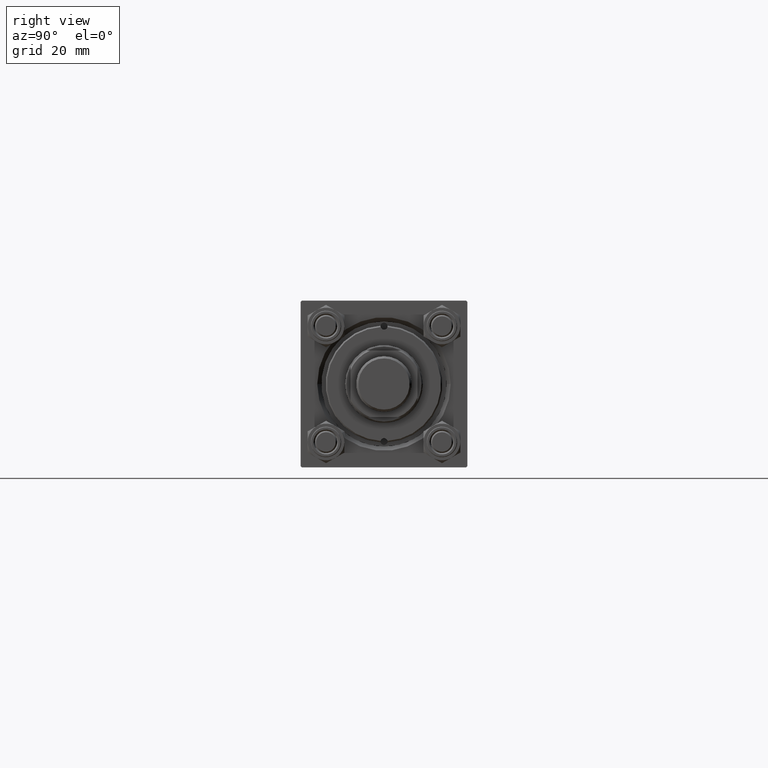
[diagram: clean part render]
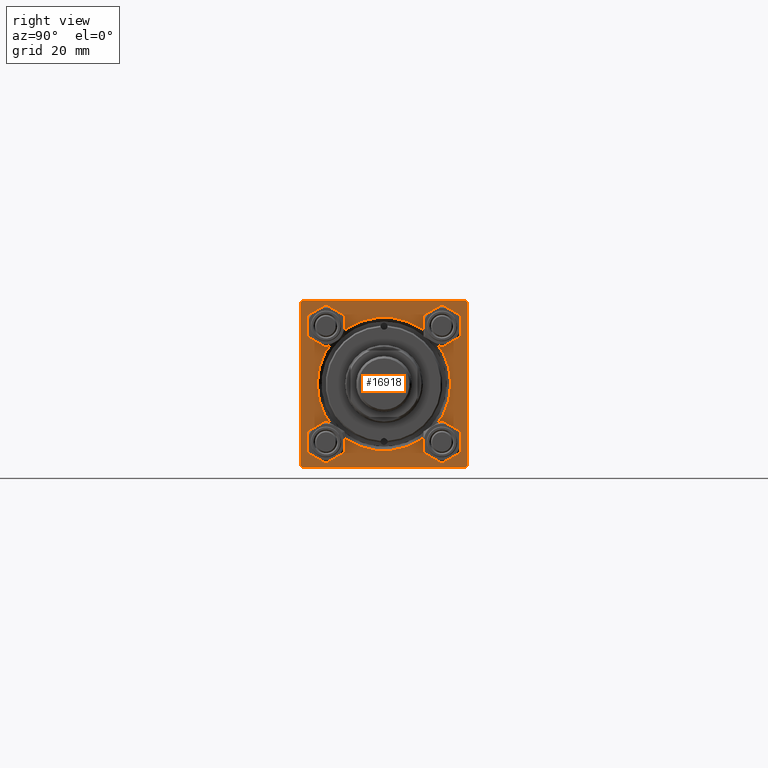
[diagram: same view with one face highlighted and labeled with its STEP entity id]
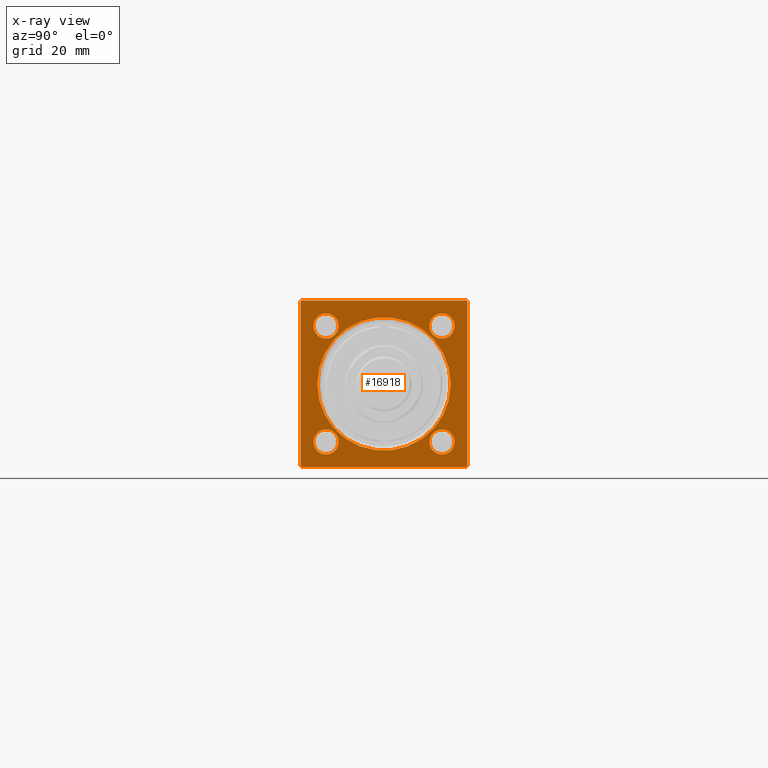
[diagram: x-ray of the same camera — body ghosted, the highlighted face saturated]
A machine part, right view. The second image highlights one B-rep face of the part: STEP entity #16918.
The next image is the same camera in x-ray: the body ghosted, the highlighted face saturated — about 0% of this face is hidden behind the body in this view.
In plain terms, the highlighted planar face has unit normal (-1, 0, 0).
Its self-contained STEP definition (entity closure, byte-faithful):
#65 = FACE_BOUND ( 'NONE', #26606, .T. ) ;
#494 = DIRECTION ( 'NONE',  ( 0.000000000000000000, 0.000000000000000000, 1.000000000000000000 ) ) ;
#593 = DIRECTION ( 'NONE',  ( 0.000000000000000000, 0.000000000000000000, 1.000000000000000000 ) ) ;
#742 = VERTEX_POINT ( 'NONE', #10317 ) ;
#767 = AXIS2_PLACEMENT_3D ( 'NONE', #34773, #26139, #25629 ) ;
#818 = FACE_BOUND ( 'NONE', #18807, .T. ) ;
#980 = AXIS2_PLACEMENT_3D ( 'NONE', #35482, #47048, #40095 ) ;
#1140 = AXIS2_PLACEMENT_3D ( 'NONE', #13051, #19986, #494 ) ;
#1704 = DIRECTION ( 'NONE',  ( -1.000000000000000000, 0.000000000000000000, -0.000000000000000000 ) ) ;
#2290 = LINE ( 'NONE', #45687, #48070 ) ;
#3134 = ORIENTED_EDGE ( 'NONE', *, *, #30481, .T. ) ;
#3347 = EDGE_CURVE ( 'NONE', #4577, #30476, #32296, .T. ) ;
#4004 = DIRECTION ( 'NONE',  ( 0.000000000000000000, -1.000000000000000000, -1.156482317317871478E-16 ) ) ;
#4492 = DIRECTION ( 'NONE',  ( 0.000000000000000000, 0.000000000000000000, 1.000000000000000000 ) ) ;
#4577 = VERTEX_POINT ( 'NONE', #38826 ) ;
#4950 = EDGE_LOOP ( 'NONE', ( #40912, #36029 ) ) ;
#5417 = LINE ( 'NONE', #5679, #8709 ) ;
#5527 = CARTESIAN_POINT ( 'NONE',  ( 148.0000000000000000, 30.00000000000000000, -29.49999999999999289 ) ) ;
#5679 = CARTESIAN_POINT ( 'NONE',  ( 148.0000000000000000, -29.50000000000000000, -30.00000000000000000 ) ) ;
#6727 = ORIENTED_EDGE ( 'NONE', *, *, #29490, .T. ) ;
#6857 = VERTEX_POINT ( 'NONE', #39284 ) ;
#7129 = VECTOR ( 'NONE', #44576, 1000.000000000000114 ) ;
#7213 = CARTESIAN_POINT ( 'NONE',  ( 148.0000000000000000, -30.00000000000000000, 29.49999999999999289 ) ) ;
#7298 = VERTEX_POINT ( 'NONE', #43359 ) ;
#7476 = ORIENTED_EDGE ( 'NONE', *, *, #10613, .T. ) ;
#7773 = CARTESIAN_POINT ( 'NONE',  ( 148.0000000000000000, 20.84999999999999787, 20.85000000000000142 ) ) ;
#7782 = EDGE_CURVE ( 'NONE', #12821, #742, #29420, .T. ) ;
#8271 = DIRECTION ( 'NONE',  ( -1.000000000000000000, 0.000000000000000000, -0.000000000000000000 ) ) ;
#8523 = CARTESIAN_POINT ( 'NONE',  ( 148.0000000000000000, 20.84999999999999787, -20.85000000000000142 ) ) ;
#8676 = CIRCLE ( 'NONE', #9502, 4.500000000000017764 ) ;
#8709 = VECTOR ( 'NONE', #27838, 1000.000000000000114 ) ;
#9215 = DIRECTION ( 'NONE',  ( 0.000000000000000000, 0.000000000000000000, 1.000000000000000000 ) ) ;
#9502 = AXIS2_PLACEMENT_3D ( 'NONE', #26929, #38242, #14623 ) ;
#9604 = EDGE_CURVE ( 'NONE', #14969, #45554, #49526, .T. ) ;
#9749 = CARTESIAN_POINT ( 'NONE',  ( 148.0000000000000000, -20.85000000000000142, -25.35000000000001918 ) ) ;
#9821 = ORIENTED_EDGE ( 'NONE', *, *, #46808, .T. ) ;
#9916 = CARTESIAN_POINT ( 'NONE',  ( 148.0000000000000000, 0.000000000000000000, 0.000000000000000000 ) ) ;
#10317 = CARTESIAN_POINT ( 'NONE',  ( 148.0000000000000000, 30.00000000000000000, -29.49999999999997868 ) ) ;
#10483 = DIRECTION ( 'NONE',  ( -0.000000000000000000, -0.7071067811865474617, -0.7071067811865474617 ) ) ;
#10565 = CARTESIAN_POINT ( 'NONE',  ( 148.0000000000000000, -20.84999999999999432, 16.34999999999998366 ) ) ;
#10613 = EDGE_CURVE ( 'NONE', #45978, #7298, #22079, .T. ) ;
#10617 = EDGE_CURVE ( 'NONE', #31427, #28323, #42573, .T. ) ;
#10661 = CARTESIAN_POINT ( 'NONE',  ( 148.0000000000000000, 0.000000000000000000, -24.00000000000003908 ) ) ;
#10794 = ORIENTED_EDGE ( 'NONE', *, *, #9604, .T. ) ;
#10937 = EDGE_LOOP ( 'NONE', ( #26867, #46788 ) ) ;
#11009 = AXIS2_PLACEMENT_3D ( 'NONE', #9916, #1704, #37643 ) ;
#12133 = EDGE_CURVE ( 'NONE', #42446, #42846, #29527, .T. ) ;
#12764 = VECTOR ( 'NONE', #45111, 1000.000000000000114 ) ;
#12821 = VERTEX_POINT ( 'NONE', #13854 ) ;
#13051 = CARTESIAN_POINT ( 'NONE',  ( 148.0000000000000000, -20.85000000000000142, -20.85000000000000142 ) ) ;
#13117 = VECTOR ( 'NONE', #10483, 1000.000000000000114 ) ;
#13755 = LINE ( 'NONE', #37390, #12764 ) ;
#13854 = CARTESIAN_POINT ( 'NONE',  ( 148.0000000000000000, 29.50000000000000000, -29.99999999999999289 ) ) ;
#14300 = EDGE_CURVE ( 'NONE', #6857, #14969, #44062, .T. ) ;
#14319 = CARTESIAN_POINT ( 'NONE',  ( 148.0000000000000000, 20.84999999999999787, -25.35000000000001918 ) ) ;
#14623 = DIRECTION ( 'NONE',  ( 0.000000000000000000, 0.000000000000000000, 1.000000000000000000 ) ) ;
#14969 = VERTEX_POINT ( 'NONE', #25887 ) ;
#15854 = EDGE_LOOP ( 'NONE', ( #49025, #9821, #42131, #43361, #16488, #6727, #49681, #10794 ) ) ;
#15964 = FACE_BOUND ( 'NONE', #24201, .T. ) ;
#16488 = ORIENTED_EDGE ( 'NONE', *, *, #23167, .F. ) ;
#16544 = CARTESIAN_POINT ( 'NONE',  ( 148.0000000000000000, -20.85000000000000142, -20.85000000000000142 ) ) ;
#16586 = CARTESIAN_POINT ( 'NONE',  ( 148.0000000000000000, -30.00000000000000000, 29.99999999999999289 ) ) ;
#16918 = ADVANCED_FACE ( 'NONE', ( #47558, #818, #15964, #28028, #65, #31897 ), #32401, .F. ) ;
#18807 = EDGE_LOOP ( 'NONE', ( #3134, #28249 ) ) ;
#19986 = DIRECTION ( 'NONE',  ( -1.000000000000000000, 0.000000000000000000, -0.000000000000000000 ) ) ;
#21264 = AXIS2_PLACEMENT_3D ( 'NONE', #8523, #8271, #35509 ) ;
#21551 = DIRECTION ( 'NONE',  ( -1.000000000000000000, 0.000000000000000000, -0.000000000000000000 ) ) ;
#22079 = CIRCLE ( 'NONE', #40090, 4.500000000000017764 ) ;
#22244 = EDGE_CURVE ( 'NONE', #45554, #30277, #32257, .T. ) ;
#22748 = AXIS2_PLACEMENT_3D ( 'NONE', #22821, #46948, #26430 ) ;
#22821 = CARTESIAN_POINT ( 'NONE',  ( 148.0000000000000000, -20.84999999999999432, 20.85000000000000142 ) ) ;
#23167 = EDGE_CURVE ( 'NONE', #37876, #742, #37721, .T. ) ;
#23607 = CARTESIAN_POINT ( 'NONE',  ( 148.0000000000000000, -29.50000000000000000, -30.00000000000000000 ) ) ;
#23710 = VERTEX_POINT ( 'NONE', #10565 ) ;
#24201 = EDGE_LOOP ( 'NONE', ( #46082, #7476 ) ) ;
#24925 = CIRCLE ( 'NONE', #11009, 24.00000000000003908 ) ;
#25410 = CARTESIAN_POINT ( 'NONE',  ( 148.0000000000000000, 20.84999999999999787, -20.85000000000000142 ) ) ;
#25629 = DIRECTION ( 'NONE',  ( 0.000000000000000000, 0.000000000000000000, 1.000000000000000000 ) ) ;
#25648 = CARTESIAN_POINT ( 'NONE',  ( 148.0000000000000000, 30.00000000000000000, 30.00000000000000000 ) ) ;
#25887 = CARTESIAN_POINT ( 'NONE',  ( 148.0000000000000000, -29.50000000000000000, 29.99999999999999289 ) ) ;
#26139 = DIRECTION ( 'NONE',  ( -1.000000000000000000, 0.000000000000000000, -0.000000000000000000 ) ) ;
#26430 = DIRECTION ( 'NONE',  ( 0.000000000000000000, 0.000000000000000000, 1.000000000000000000 ) ) ;
#26606 = EDGE_LOOP ( 'NONE', ( #35897, #43720 ) ) ;
#26867 = ORIENTED_EDGE ( 'NONE', *, *, #32600, .T. ) ;
#26929 = CARTESIAN_POINT ( 'NONE',  ( 148.0000000000000000, -20.84999999999999432, 20.85000000000000142 ) ) ;
#27118 = VECTOR ( 'NONE', #4004, 1000.000000000000000 ) ;
#27581 = CIRCLE ( 'NONE', #42344, 4.500000000000017764 ) ;
#27838 = DIRECTION ( 'NONE',  ( 0.000000000000000000, 0.7071067811865474617, -0.7071067811865474617 ) ) ;
#27944 = CARTESIAN_POINT ( 'NONE',  ( 148.0000000000000000, 2.939152317953652628E-15, 24.00000000000003908 ) ) ;
#28028 = FACE_BOUND ( 'NONE', #4950, .T. ) ;
#28249 = ORIENTED_EDGE ( 'NONE', *, *, #10617, .T. ) ;
#28323 = VERTEX_POINT ( 'NONE', #14319 ) ;
#28399 = CARTESIAN_POINT ( 'NONE',  ( 148.0000000000000000, 20.84999999999999787, 20.85000000000000142 ) ) ;
#29420 = LINE ( 'NONE', #5527, #7129 ) ;
#29490 = EDGE_CURVE ( 'NONE', #37876, #6857, #13755, .T. ) ;
#29527 = CIRCLE ( 'NONE', #767, 24.00000000000003908 ) ;
#29890 = VECTOR ( 'NONE', #31767, 1000.000000000000000 ) ;
#30277 = VERTEX_POINT ( 'NONE', #41398 ) ;
#30476 = VERTEX_POINT ( 'NONE', #9749 ) ;
#30481 = EDGE_CURVE ( 'NONE', #28323, #31427, #27581, .T. ) ;
#31427 = VERTEX_POINT ( 'NONE', #43600 ) ;
#31767 = DIRECTION ( 'NONE',  ( 0.000000000000000000, 0.000000000000000000, -1.000000000000000000 ) ) ;
#31897 = FACE_OUTER_BOUND ( 'NONE', #15854, .T. ) ;
#31983 = CARTESIAN_POINT ( 'NONE',  ( 148.0000000000000000, 30.00000000000000000, 30.00000000000000000 ) ) ;
#32257 = LINE ( 'NONE', #16586, #29890 ) ;
#32296 = CIRCLE ( 'NONE', #1140, 4.500000000000017764 ) ;
#32401 = PLANE ( 'NONE',  #980 ) ;
#32600 = EDGE_CURVE ( 'NONE', #30476, #4577, #35792, .T. ) ;
#33371 = AXIS2_PLACEMENT_3D ( 'NONE', #16544, #44046, #4492 ) ;
#33432 = CARTESIAN_POINT ( 'NONE',  ( 148.0000000000000000, -20.84999999999999432, 25.35000000000001918 ) ) ;
#33979 = AXIS2_PLACEMENT_3D ( 'NONE', #28399, #43564, #44081 ) ;
#34308 = EDGE_CURVE ( 'NONE', #23710, #50164, #49863, .T. ) ;
#34773 = CARTESIAN_POINT ( 'NONE',  ( 148.0000000000000000, 0.000000000000000000, 0.000000000000000000 ) ) ;
#35482 = CARTESIAN_POINT ( 'NONE',  ( 148.0000000000000000, 0.000000000000000000, 0.000000000000000000 ) ) ;
#35509 = DIRECTION ( 'NONE',  ( 0.000000000000000000, 0.000000000000000000, 1.000000000000000000 ) ) ;
#35792 = CIRCLE ( 'NONE', #33371, 4.500000000000017764 ) ;
#35897 = ORIENTED_EDGE ( 'NONE', *, *, #37716, .T. ) ;
#36029 = ORIENTED_EDGE ( 'NONE', *, *, #45849, .T. ) ;
#37390 = CARTESIAN_POINT ( 'NONE',  ( 148.0000000000000000, 29.50000000000000000, 30.00000000000000000 ) ) ;
#37466 = DIRECTION ( 'NONE',  ( 0.000000000000000000, 0.000000000000000000, -1.000000000000000000 ) ) ;
#37630 = EDGE_CURVE ( 'NONE', #7298, #45978, #42977, .T. ) ;
#37643 = DIRECTION ( 'NONE',  ( 0.000000000000000000, 0.000000000000000000, 1.000000000000000000 ) ) ;
#37716 = EDGE_CURVE ( 'NONE', #42846, #42446, #24925, .T. ) ;
#37721 = LINE ( 'NONE', #25648, #46313 ) ;
#37876 = VERTEX_POINT ( 'NONE', #44280 ) ;
#38242 = DIRECTION ( 'NONE',  ( -1.000000000000000000, 0.000000000000000000, -0.000000000000000000 ) ) ;
#38826 = CARTESIAN_POINT ( 'NONE',  ( 148.0000000000000000, -20.85000000000000142, -16.34999999999998366 ) ) ;
#39284 = CARTESIAN_POINT ( 'NONE',  ( 148.0000000000000000, 29.50000000000000000, 30.00000000000000000 ) ) ;
#39380 = VERTEX_POINT ( 'NONE', #23607 ) ;
#40090 = AXIS2_PLACEMENT_3D ( 'NONE', #7773, #42969, #593 ) ;
#40095 = DIRECTION ( 'NONE',  ( -0.000000000000000000, 0.000000000000000000, 1.000000000000000000 ) ) ;
#40912 = ORIENTED_EDGE ( 'NONE', *, *, #34308, .T. ) ;
#41398 = CARTESIAN_POINT ( 'NONE',  ( 148.0000000000000000, -30.00000000000000000, -29.49999999999998579 ) ) ;
#42131 = ORIENTED_EDGE ( 'NONE', *, *, #46243, .F. ) ;
#42344 = AXIS2_PLACEMENT_3D ( 'NONE', #25410, #21551, #9215 ) ;
#42446 = VERTEX_POINT ( 'NONE', #27944 ) ;
#42573 = CIRCLE ( 'NONE', #21264, 4.500000000000017764 ) ;
#42846 = VERTEX_POINT ( 'NONE', #10661 ) ;
#42969 = DIRECTION ( 'NONE',  ( -1.000000000000000000, 0.000000000000000000, -0.000000000000000000 ) ) ;
#42977 = CIRCLE ( 'NONE', #33979, 4.500000000000017764 ) ;
#43359 = CARTESIAN_POINT ( 'NONE',  ( 148.0000000000000000, 20.84999999999999787, 16.34999999999998366 ) ) ;
#43361 = ORIENTED_EDGE ( 'NONE', *, *, #7782, .T. ) ;
#43564 = DIRECTION ( 'NONE',  ( -1.000000000000000000, 0.000000000000000000, -0.000000000000000000 ) ) ;
#43600 = CARTESIAN_POINT ( 'NONE',  ( 148.0000000000000000, 20.84999999999999787, -16.34999999999998366 ) ) ;
#43720 = ORIENTED_EDGE ( 'NONE', *, *, #12133, .T. ) ;
#44046 = DIRECTION ( 'NONE',  ( -1.000000000000000000, 0.000000000000000000, -0.000000000000000000 ) ) ;
#44062 = LINE ( 'NONE', #31983, #27118 ) ;
#44081 = DIRECTION ( 'NONE',  ( 0.000000000000000000, 0.000000000000000000, 1.000000000000000000 ) ) ;
#44280 = CARTESIAN_POINT ( 'NONE',  ( 148.0000000000000000, 30.00000000000000000, 29.50000000000000000 ) ) ;
#44576 = DIRECTION ( 'NONE',  ( -0.000000000000000000, 0.7071067811865474617, 0.7071067811865474617 ) ) ;
#45111 = DIRECTION ( 'NONE',  ( 0.000000000000000000, -0.7071067811865474617, 0.7071067811865474617 ) ) ;
#45554 = VERTEX_POINT ( 'NONE', #7213 ) ;
#45684 = CARTESIAN_POINT ( 'NONE',  ( 148.0000000000000000, -30.00000000000000000, 29.49999999999999289 ) ) ;
#45687 = CARTESIAN_POINT ( 'NONE',  ( 148.0000000000000000, 30.00000000000000000, -29.99999999999999289 ) ) ;
#45849 = EDGE_CURVE ( 'NONE', #50164, #23710, #8676, .T. ) ;
#45978 = VERTEX_POINT ( 'NONE', #49249 ) ;
#46082 = ORIENTED_EDGE ( 'NONE', *, *, #37630, .T. ) ;
#46243 = EDGE_CURVE ( 'NONE', #12821, #39380, #2290, .T. ) ;
#46313 = VECTOR ( 'NONE', #37466, 1000.000000000000000 ) ;
#46788 = ORIENTED_EDGE ( 'NONE', *, *, #3347, .T. ) ;
#46808 = EDGE_CURVE ( 'NONE', #30277, #39380, #5417, .T. ) ;
#46948 = DIRECTION ( 'NONE',  ( -1.000000000000000000, 0.000000000000000000, -0.000000000000000000 ) ) ;
#47048 = DIRECTION ( 'NONE',  ( -1.000000000000000000, 0.000000000000000000, -0.000000000000000000 ) ) ;
#47558 = FACE_BOUND ( 'NONE', #10937, .T. ) ;
#48070 = VECTOR ( 'NONE', #50027, 1000.000000000000000 ) ;
#49025 = ORIENTED_EDGE ( 'NONE', *, *, #22244, .T. ) ;
#49249 = CARTESIAN_POINT ( 'NONE',  ( 148.0000000000000000, 20.84999999999999787, 25.35000000000001918 ) ) ;
#49526 = LINE ( 'NONE', #45684, #13117 ) ;
#49681 = ORIENTED_EDGE ( 'NONE', *, *, #14300, .T. ) ;
#49863 = CIRCLE ( 'NONE', #22748, 4.500000000000017764 ) ;
#50027 = DIRECTION ( 'NONE',  ( 0.000000000000000000, -1.000000000000000000, -1.156482317317871478E-16 ) ) ;
#50164 = VERTEX_POINT ( 'NONE', #33432 ) ;